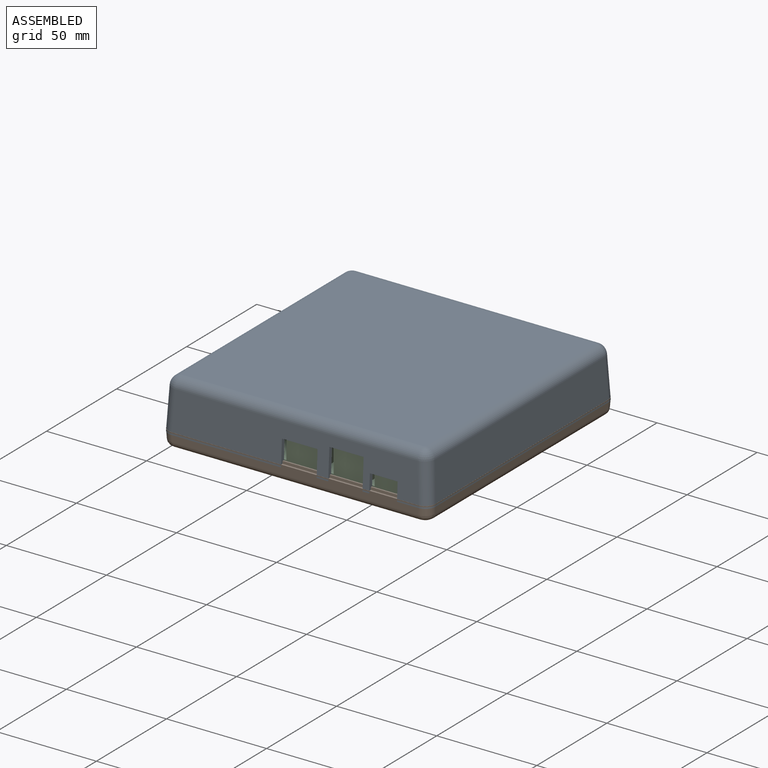
[diagram: assembled view]
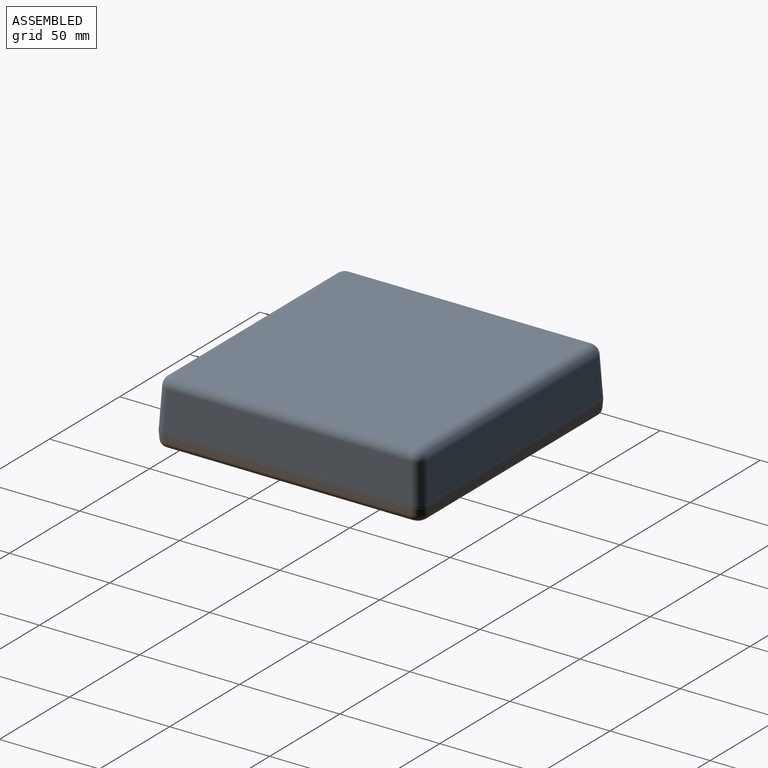
[diagram: assembled view, second angle]
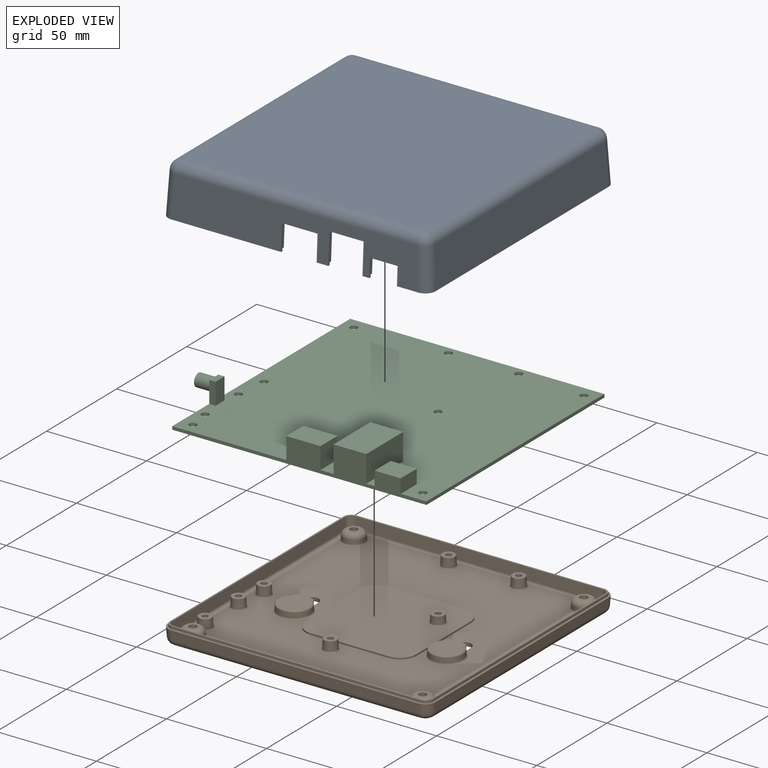
[diagram: exploded view]
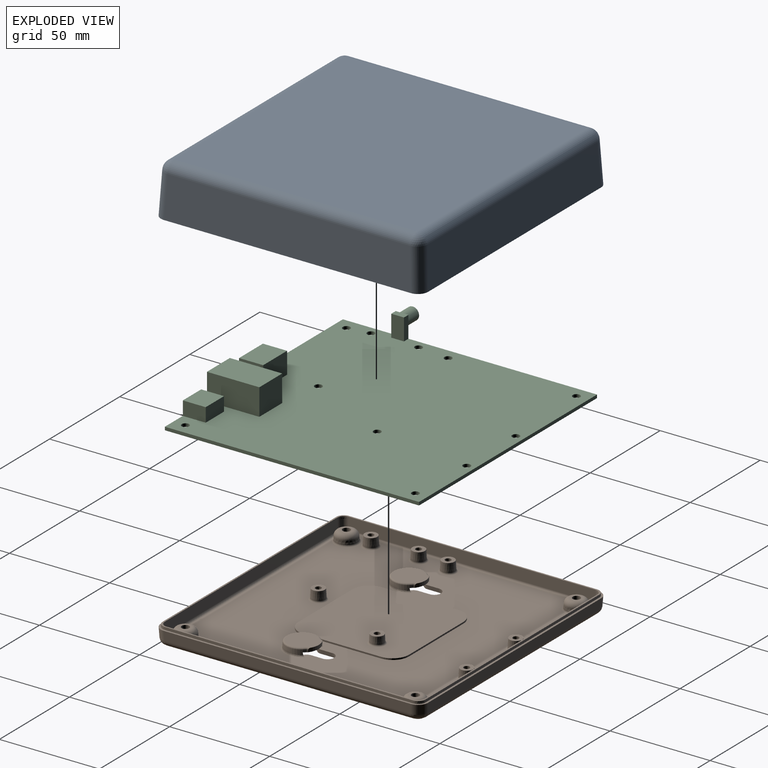
[diagram: exploded view, second angle]
ASSEMBLY  parts=3 mates=2
PART A: 152 faces, bbox 134x134x25.9 mm
  f0: plane 133.76x133.76mm, normal (0,0,-1), area 375.5mm2, adj f1,f3,f11,f50,f51,f52,f54,f56
  f1: plane 123.89x21.08mm, normal (-1,0,0.05), area 2376.1mm2, adj f0,f49,f54,f55,f64,f143,f144,f145
  f2: plane 131.77x131.77mm, normal (0,0,-1), area 372.5mm2, adj f3,f4,f11,f68,f69,f70,f71,f72
  f3: plane 89.72x1.27mm, normal (1,0,0.05), area 114mm2, adj f0,f2,f72,f143
  f4: plane 123.74x19.71mm, normal (1,0,-0.05), area 2162.6mm2, adj f2,f12,f13,f14,f15,f16,f17,f36
  f5: plane 5.82x1.02mm, normal (0,0,-1), area 5.9mm2, adj f9,f51,f137,f141
  f6: plane 3.38x1.02mm, normal (0,0,-1), area 3.4mm2, adj f10,f51,f134,f138
  f7: plane 5.82x1.02mm, normal (0,0,-1), area 5.9mm2, adj f9,f83,f137,f141
  f8: plane 3.38x1.02mm, normal (0,0,-1), area 3.5mm2, adj f10,f83,f134,f138
  f9: plane 5.82x1.27mm, normal (0,1,0.05), area 7.4mm2, adj f5,f7,f137,f141
  f10: plane 3.38x1.27mm, normal (0,1,0.05), area 4.3mm2, adj f6,f8,f134,f138
  f11: plane 10.64x1.27mm, normal (0,1,0.05), area 13.5mm2, adj f0,f2,f68,f135
  f12: bspline ~3.93x3.25mm, area 12.8mm2, adj f4,f13,f86,f132
  f13: bspline ~3.93x3.25mm, area 12.8mm2, adj f4,f12,f14,f86
  f14: bspline ~9.24x6.95mm, area 17.5mm2, adj f4,f13,f86,f133
  f15: bspline ~3.93x3.25mm, area 12.8mm2, adj f4,f16,f88,f124
  f16: bspline ~3.93x3.25mm, area 12.8mm2, adj f4,f15,f17,f88
  f17: bspline ~9.24x6.95mm, area 17.5mm2, adj f4,f16,f88,f125
  f18: bspline ~3.93x3.25mm, area 12.8mm2, adj f19,f85,f90,f116
  f19: bspline ~3.93x3.25mm, area 12.8mm2, adj f18,f20,f85,f90
  f20: bspline ~9.24x6.95mm, area 17.5mm2, adj f19,f85,f90,f117
  f21: bspline ~3.93x3.25mm, area 12.8mm2, adj f22,f81,f92,f108
  f22: bspline ~3.93x3.25mm, area 12.8mm2, adj f21,f23,f81,f92
  f23: bspline ~9.24x6.95mm, area 17.5mm2, adj f22,f81,f92,f109
  f24: bspline ~3.93x3.25mm, area 12.8mm2, adj f25,f83,f86,f127
  f25: bspline ~3.93x3.25mm, area 12.8mm2, adj f24,f26,f83,f86
  f26: bspline ~9.24x6.95mm, area 17.5mm2, adj f25,f83,f86,f126
  f27: bspline ~3.93x3.25mm, area 12.8mm2, adj f28,f85,f88,f119
  f28: bspline ~3.93x3.25mm, area 12.8mm2, adj f27,f29,f85,f88
  f29: bspline ~9.24x6.95mm, area 17.5mm2, adj f28,f85,f88,f118
  f30: bspline ~3.93x3.25mm, area 12.8mm2, adj f31,f81,f90,f111
  f31: bspline ~3.93x3.25mm, area 12.8mm2, adj f30,f32,f81,f90
  f32: bspline ~9.24x6.95mm, area 17.5mm2, adj f31,f81,f90,f110
  f33: bspline ~3.93x3.25mm, area 12.8mm2, adj f34,f83,f92,f103
  f34: bspline ~3.93x3.25mm, area 12.8mm2, adj f33,f35,f83,f92
  f35: bspline ~9.24x6.95mm, area 17.5mm2, adj f34,f83,f92,f102
  f36: cylinder r=3.17mm len=109.14mm, axis (0,-1,0), area 517.6mm2, adj f4,f48,f125,f130
  f37: cylinder r=3.17mm len=1.16mm, axis (0,-1,0), area 0.2mm2, adj f4,f76,f133
  f38: cylinder r=3.17mm len=1.16mm, axis (1,0,0), area 0.2mm2, adj f75,f85,f118
  f39: cylinder r=3.17mm len=109.14mm, axis (1,0,0), area 517.6mm2, adj f48,f85,f117,f121
  f40: cylinder r=3.17mm len=1.16mm, axis (1,0,0), area 0.2mm2, adj f77,f83,f102
  f41: cylinder r=3.17mm len=109.14mm, axis (1,0,0), area 517.6mm2, adj f48,f83,f105,f126
  f42: cylinder r=3.17mm len=1.16mm, axis (0,-1,0), area 0.2mm2, adj f78,f81,f110
  f43: cylinder r=3.17mm len=109.14mm, axis (0,-1,0), area 517.6mm2, adj f48,f81,f109,f113
  f44: cylinder r=3.17mm len=1.16mm, axis (0,-1,0), area 0.2mm2, adj f77,f81,f106
  f45: cylinder r=3.17mm len=1.16mm, axis (1,0,0), area 0.2mm2, adj f76,f83,f129
  f46: cylinder r=3.17mm len=1.16mm, axis (1,0,0), area 0.2mm2, adj f78,f85,f114
  f47: cylinder r=3.17mm len=1.16mm, axis (0,-1,0), area 0.2mm2, adj f4,f75,f122
  f48: plane 121.24x121.24mm, normal (0,0,-1), area 14423.5mm2, adj f36,f39,f41,f43,f107,f115,f123,f128
  f49: plane 60.13x27.08mm, normal (0,0,-1), area 85.4mm2, adj f1,f51,f55,f67,f73,f74,f140,f145
  f50: plane 123.39x20.59mm, normal (0,1,0.05), area 2521.4mm2, adj f0,f54,f57,f63
  f51: plane 123.4x20.59mm, normal (0,-1,0.05), area 1908.2mm2, adj f0,f5,f6,f49,f55,f56,f60,f134
  f52: plane 123.39x20.59mm, normal (1,0,0.05), area 2521.4mm2, adj f0,f56,f57,f59
  f53: plane 121.24x121.24mm, normal (0,0,1), area 14697.9mm2, adj f59,f60,f63,f64
  f54: cylinder r=5.08mm len=20.7mm, axis (-0.05,0.05,-1), area 164.4mm2, adj f0,f1,f50,f65
  f55: cylinder r=5.08mm len=20.7mm, axis (-0.05,-0.05,-1), area 164.4mm2, adj f1,f49,f51,f62
  f56: cylinder r=5.08mm len=20.7mm, axis (0.05,-0.05,-1), area 164.4mm2, adj f0,f51,f52,f58
  f57: cylinder r=5.08mm len=20.7mm, axis (0.05,0.05,-1), area 164.4mm2, adj f0,f50,f52,f61
  f58: sphere r=5.08mm, area 38.4mm2, adj f56,f59,f60
  f59: cylinder r=5.08mm len=121.24mm, axis (0,-1,0), area 935.2mm2, adj f52,f53,f58,f61
  f60: cylinder r=5.08mm len=121.24mm, axis (1,0,0), area 935.2mm2, adj f51,f53,f58,f62
  f61: sphere r=5.08mm, area 38.4mm2, adj f57,f59,f63
  f62: sphere r=5.08mm, area 38.4mm2, adj f55,f60,f64
  f63: cylinder r=5.08mm len=121.24mm, axis (1,0,0), area 935.2mm2, adj f50,f53,f61,f65
  f64: cylinder r=5.08mm len=121.24mm, axis (0,-1,0), area 935.2mm2, adj f1,f53,f62,f65
  f65: sphere r=5.08mm, area 38.4mm2, adj f54,f63,f64
  f66: plane 59.09x26.15mm, normal (0,0,-1), area 84.3mm2, adj f4,f67,f73,f74,f82,f83,f140,f145
  f67: plane 54.83x1.27mm, normal (0,1,0.05), area 69.7mm2, adj f49,f66,f74,f140
  f68: cone r=4.06mm half-angle=3deg, axis (0,0,1), area 8.2mm2, adj f0,f2,f11,f69
  f69: plane 123.38x1.27mm, normal (-1,0,0.05), area 156.9mm2, adj f0,f2,f68,f70
  f70: cone r=4.06mm half-angle=3deg, axis (0,0,1), area 8.2mm2, adj f0,f2,f69,f71
  f71: plane 123.38x1.27mm, normal (0,-1,0.05), area 156.9mm2, adj f0,f2,f70,f72
  f72: cone r=4.06mm half-angle=3deg, axis (0,0,1), area 8.2mm2, adj f0,f2,f3,f71
  f73: plane 21.89x1.27mm, normal (1,0,0.05), area 27.8mm2, adj f49,f66,f74,f145
  f74: cone r=4.06mm half-angle=3deg, axis (0,0,1), area 8.2mm2, adj f49,f66,f67,f73
  f75: sphere r=3.17mm, area 9mm2, adj f38,f47,f84,f120
  f76: sphere r=3.17mm, area 9mm2, adj f37,f45,f82,f131
  f77: sphere r=3.17mm, area 9mm2, adj f40,f44,f79,f104
  f78: sphere r=3.17mm, area 9mm2, adj f42,f46,f80,f112
  f79: cylinder r=3.17mm len=19.28mm, axis (0.05,-0.05,-1), area 95.9mm2, adj f2,f77,f81,f83
  f80: cylinder r=3.17mm len=19.28mm, axis (0.05,0.05,-1), area 95.9mm2, adj f2,f78,f81,f85
  f81: plane 123.3x19.27mm, normal (-1,0,-0.05), area 2293mm2, adj f2,f21,f22,f23,f30,f31,f32,f42
  f82: cylinder r=3.17mm len=19.28mm, axis (-0.05,-0.05,-1), area 95.9mm2, adj f4,f66,f76,f83
  f83: plane 123.3x19.27mm, normal (0,1,-0.05), area 1741.7mm2, adj f2,f7,f8,f24,f25,f26,f33,f34
  f84: cylinder r=3.17mm len=19.28mm, axis (-0.05,0.05,-1), area 95.9mm2, adj f2,f4,f75,f85
  f85: plane 123.3x19.27mm, normal (0,-1,-0.05), area 2292.8mm2, adj f2,f18,f19,f20,f27,f28,f29,f38
  f86: cone r=4.13mm half-angle=3deg, axis (0,0,1), area 380.3mm2, adj f12,f13,f14,f24,f25,f26,f87,f126
  f87: plane 6.03x6.03mm, normal (0,0,-1), area 20.6mm2, adj f86,f100
  f88: cone r=4.13mm half-angle=3deg, axis (0,0,1), area 380.3mm2, adj f15,f16,f17,f27,f28,f29,f89,f118
  f89: plane 6.03x6.03mm, normal (0,0,-1), area 20.6mm2, adj f88,f98
  f90: cone r=4.13mm half-angle=3deg, axis (0,0,1), area 380.3mm2, adj f18,f19,f20,f30,f31,f32,f91,f110
  f91: plane 6.03x6.03mm, normal (0,0,-1), area 20.6mm2, adj f90,f96
  f92: cone r=4.13mm half-angle=3deg, axis (0,0,1), area 380.3mm2, adj f21,f22,f23,f33,f34,f35,f93,f102
  f93: plane 6.03x6.03mm, normal (0,0,-1), area 20.6mm2, adj f92,f94
  f94: cone r=1.59mm half-angle=3deg, axis (0,0,1), area 153.4mm2, adj f93,f95
  f95: plane 4.51x4.51mm, normal (0,0,-1), area 15.9mm2, adj f94
  f96: cone r=1.59mm half-angle=3deg, axis (0,0,1), area 153.4mm2, adj f91,f97
  f97: plane 4.51x4.51mm, normal (0,0,-1), area 15.9mm2, adj f96
  f98: cone r=1.59mm half-angle=3deg, axis (0,0,1), area 153.4mm2, adj f89,f99
  f99: plane 4.51x4.51mm, normal (0,0,-1), area 15.9mm2, adj f98
  f100: cone r=1.59mm half-angle=3deg, axis (0,0,1), area 153.4mm2, adj f87,f101
  f101: plane 4.51x4.51mm, normal (0,0,-1), area 15.9mm2, adj f100
  f102: bspline ~6.07x3.61mm, area 5.1mm2, adj f35,f40,f92,f104
  f103: bspline ~10.75x9.46mm, area 17.5mm2, adj f33,f83,f92,f105
  f104: bspline ~6.84x6.46mm, area 15.3mm2, adj f77,f92,f102,f106
  f105: bspline ~7.62x4.46mm, area 14.4mm2, adj f41,f92,f103,f107
  f106: bspline ~6.06x3.58mm, area 5.1mm2, adj f44,f92,f104,f108
  f107: torus R=5.63mm, axis (0,0,1), area 30.9mm2, adj f48,f92,f105,f109
  f108: bspline ~10.75x9.46mm, area 17.5mm2, adj f21,f81,f92,f106
  f109: bspline ~7.65x4.37mm, area 14.4mm2, adj f23,f43,f92,f107
  f110: bspline ~6.07x3.61mm, area 5.1mm2, adj f32,f42,f90,f112
  f111: bspline ~10.75x9.46mm, area 17.5mm2, adj f30,f81,f90,f113
  f112: bspline ~6.36x6.36mm, area 15.3mm2, adj f78,f90,f110,f114
  f113: bspline ~7.62x4.46mm, area 14.4mm2, adj f43,f90,f111,f115
  f114: bspline ~6.06x3.58mm, area 5.1mm2, adj f46,f90,f112,f116
  f115: torus R=5.63mm, axis (0,0,1), area 30.9mm2, adj f48,f90,f113,f117
  f116: bspline ~10.75x9.46mm, area 17.5mm2, adj f18,f85,f90,f114
  f117: bspline ~7.65x4.37mm, area 14.4mm2, adj f20,f39,f90,f115
  f118: bspline ~6.07x3.61mm, area 5.1mm2, adj f29,f38,f88,f120
  f119: bspline ~10.75x9.46mm, area 17.5mm2, adj f27,f85,f88,f121
  f120: bspline ~6.84x6.46mm, area 15.3mm2, adj f75,f88,f118,f122
  f121: bspline ~7.62x4.46mm, area 14.4mm2, adj f39,f88,f119,f123
  f122: bspline ~6.06x3.58mm, area 5.1mm2, adj f47,f88,f120,f124
  f123: torus R=5.63mm, axis (0,0,1), area 30.9mm2, adj f48,f88,f121,f125
  f124: bspline ~10.75x9.46mm, area 17.5mm2, adj f4,f15,f88,f122
  f125: bspline ~7.65x4.37mm, area 14.4mm2, adj f17,f36,f88,f123
  f126: bspline ~7.65x4.37mm, area 14.4mm2, adj f26,f41,f86,f128
  f127: bspline ~10.75x9.46mm, area 17.5mm2, adj f24,f83,f86,f129
  f128: torus R=5.63mm, axis (0,0,1), area 30.9mm2, adj f48,f86,f126,f130
  f129: bspline ~6.06x3.58mm, area 5.1mm2, adj f45,f86,f127,f131
  f130: bspline ~7.62x4.46mm, area 14.4mm2, adj f36,f86,f128,f132
  f131: bspline ~6.84x6.46mm, area 15.3mm2, adj f76,f86,f129,f133
  f132: bspline ~10.75x9.46mm, area 17.5mm2, adj f4,f12,f86,f130
  f133: bspline ~6.07x3.61mm, area 5.1mm2, adj f14,f37,f86,f131
  f134: plane 8.7x2.36mm, normal (1,0,0), area 15.4mm2, adj f6,f8,f10,f51,f83,f147
  f135: plane 8.7x2.36mm, normal (-1,0,0), area 15.4mm2, adj f0,f2,f11,f51,f83,f146
  f136: plane 13.34x1.91mm, normal (0,0,-1), area 25.4mm2, adj f51,f83,f146,f147
  f137: plane 15.05x2.7mm, normal (1,0,0), area 27.5mm2, adj f5,f7,f9,f51,f83,f149
  f138: plane 15.05x2.7mm, normal (-1,0,0), area 27.5mm2, adj f6,f8,f10,f51,f83,f148
  f139: plane 16.59x1.91mm, normal (0,0,-1), area 31.6mm2, adj f51,f83,f148,f149
  f140: plane 12.51x2.56mm, normal (1,0,0), area 22.6mm2, adj f49,f51,f66,f67,f83,f151
  f141: plane 12.51x2.56mm, normal (-1,0,0), area 22.6mm2, adj f5,f7,f9,f51,f83,f150
  f142: plane 17.27x1.91mm, normal (0,0,-1), area 32.9mm2, adj f51,f83,f150,f151
  f143: plane 9.66x2.41mm, normal (0,-1,-0.09), area 17.3mm2, adj f0,f1,f2,f3,f4,f144
  f144: cylinder r=5.17mm len=10.31mm, axis (1,0,0), area 29.3mm2, adj f1,f4,f143,f145
  f145: plane 9.66x2.41mm, normal (0,1,-0.09), area 17.3mm2, adj f1,f4,f49,f66,f73,f144
  f146: cylinder r=0.25mm len=1.92mm, axis (0,1,0), area 0.8mm2, adj f51,f83,f135,f136
  f147: cylinder r=0.25mm len=1.92mm, axis (0,-1,0), area 0.8mm2, adj f51,f83,f134,f136
  f148: cylinder r=0.25mm len=1.92mm, axis (0,1,0), area 0.8mm2, adj f51,f83,f138,f139
  f149: cylinder r=0.25mm len=1.92mm, axis (0,-1,0), area 0.8mm2, adj f51,f83,f137,f139
  f150: cylinder r=0.25mm len=1.92mm, axis (0,1,0), area 0.8mm2, adj f51,f83,f141,f142
  f151: cylinder r=0.25mm len=1.92mm, axis (0,-1,0), area 0.8mm2, adj f51,f83,f140,f142
PART B: 195 faces, bbox 133.7x133.7x9.1 mm
  f0: plane 126.7x126.7mm, normal (0,0,1), area 11700.7mm2, adj f8,f9,f10,f11,f12,f13,f14,f15
  f1: plane 4.15x4.15mm, normal (0,0,1), area 4.9mm2, adj f90,f92,f94,f183
  f2: plane 4.15x4.15mm, normal (0,0,1), area 4.9mm2, adj f87,f88,f90,f178
  f3: plane 4.15x4.15mm, normal (0,0,1), area 4.9mm2, adj f91,f93,f94,f186
  f4: plane 14.41x12.9mm, normal (0,0,-1), area 153.2mm2, adj f12,f20,f21,f22,f156,f157,f158,f159
  f5: plane 14.41x12.9mm, normal (0,0,-1), area 153.2mm2, adj f18,f23,f24,f25,f152,f153,f154,f155
  f6: plane 15.59x14.47mm, normal (0,0,1), area 175mm2, adj f161,f162,f163,f164
  f7: plane 15.59x14.47mm, normal (0,0,1), area 175mm2, adj f160,f165,f166,f167
  f8: plane 5.84x1.91mm, normal (1,0,-0.05), area 11.1mm2, adj f0,f9,f13,f27
  f9: cone r=3.43mm half-angle=3deg, axis (0,0,-1), area 20.3mm2, adj f0,f8,f10,f27
  f10: plane 5.84x1.91mm, normal (-1,0,-0.05), area 11.1mm2, adj f0,f9,f11,f27
  f11: cone r=3.17mm half-angle=3deg, axis (0,0,1), area 5mm2, adj f0,f10,f12,f27
  f12: cone r=6.35mm half-angle=3deg, axis (0,0,-1), area 94.1mm2, adj f0,f4,f11,f13,f27,f156,f157
  f13: cone r=3.17mm half-angle=3deg, axis (0,0,1), area 5mm2, adj f0,f8,f12,f27
  f14: plane 5.84x1.91mm, normal (1,0,-0.05), area 11.1mm2, adj f0,f15,f19,f27
  f15: cone r=3.43mm half-angle=3deg, axis (0,0,-1), area 20.3mm2, adj f0,f14,f16,f27
  f16: plane 5.84x1.91mm, normal (-1,0,-0.05), area 11.1mm2, adj f0,f15,f17,f27
  f17: cone r=3.17mm half-angle=3deg, axis (0,0,1), area 5mm2, adj f0,f16,f18,f27
  f18: cone r=6.35mm half-angle=3deg, axis (0,0,-1), area 94.1mm2, adj f0,f5,f17,f19,f27,f152,f153
  f19: cone r=3.17mm half-angle=3deg, axis (0,0,1), area 5mm2, adj f0,f14,f18,f27
  f20: cone r=1.27mm half-angle=3deg, axis (0,0,1), area 1mm2, adj f4,f21,f161,f164
  f21: cone r=8.25mm half-angle=3deg, axis (0,0,-1), area 87.8mm2, adj f4,f20,f22,f158,f159,f163,f189
  f22: cone r=1.27mm half-angle=3deg, axis (0,0,1), area 1mm2, adj f4,f21,f161,f162
  f23: cone r=1.27mm half-angle=3deg, axis (0,0,1), area 1mm2, adj f5,f24,f160,f167
  f24: cone r=8.25mm half-angle=3deg, axis (0,0,-1), area 87.8mm2, adj f5,f23,f25,f154,f155,f166,f190
  f25: cone r=1.27mm half-angle=3deg, axis (0,0,1), area 1mm2, adj f5,f24,f160,f165
  f26: plane 133.75x133.75mm, normal (0,0,1), area 530.3mm2, adj f28,f29,f30,f31,f41,f42,f43,f44
  f27: plane 126.7x126.7mm, normal (0,0,-1), area 12686.5mm2, adj f8,f9,f10,f11,f12,f13,f14,f15
  f28: plane 123.38x4.61mm, normal (0,1,-0.05), area 568.6mm2, adj f26,f41,f44,f48
  f29: plane 123.38x4.61mm, normal (-1,0,-0.05), area 568.6mm2, adj f26,f41,f42,f45
  f30: plane 123.38x4.61mm, normal (0,-1,-0.05), area 568.6mm2, adj f26,f42,f43,f49
  f31: plane 123.38x4.61mm, normal (1,0,-0.05), area 568.6mm2, adj f26,f43,f44,f52
  f32: plane 38.74x0.76mm, normal (-1,0,0), area 29.5mm2, adj f27,f33,f39,f40
  f33: cylinder r=6.35mm len=6.35mm, axis (0,0,-1), area 7.6mm2, adj f27,f32,f34,f40
  f34: plane 38.74x0.76mm, normal (0,1,0), area 29.5mm2, adj f27,f33,f35,f40
  f35: cylinder r=6.35mm len=6.35mm, axis (0,0,-1), area 7.6mm2, adj f27,f34,f36,f40
  f36: plane 38.74x0.76mm, normal (1,0,0), area 29.5mm2, adj f27,f35,f37,f40
  f37: cylinder r=6.35mm len=6.35mm, axis (0,0,-1), area 7.6mm2, adj f27,f36,f38,f40
  f38: plane 38.74x0.76mm, normal (0,-1,0), area 29.5mm2, adj f27,f37,f39,f40
  f39: cylinder r=6.35mm len=6.35mm, axis (0,0,-1), area 7.6mm2, adj f27,f32,f38,f40
  f40: plane 51.44x51.44mm, normal (0,0,-1), area 2610.9mm2, adj f32,f33,f34,f35,f36,f37,f38,f39
  f41: cylinder r=5.08mm len=5.31mm, axis (-0.05,0.05,1), area 36.8mm2, adj f26,f28,f29,f46
  f42: cylinder r=5.08mm len=5.31mm, axis (-0.05,-0.05,1), area 36.8mm2, adj f26,f29,f30,f47
  f43: cylinder r=5.08mm len=5.31mm, axis (0.05,-0.05,1), area 36.8mm2, adj f26,f30,f31,f51
  f44: cylinder r=5.08mm len=5.31mm, axis (0.05,0.05,1), area 36.8mm2, adj f26,f28,f31,f50
  f45: cylinder r=3.17mm len=122.9mm, axis (0,1,0), area 592.5mm2, adj f27,f29,f46,f47
  f46: bspline ~5.07x5.07mm, area 29.1mm2, adj f27,f41,f45,f48
  f47: bspline ~5.07x5.07mm, area 29.1mm2, adj f27,f42,f45,f49
  f48: cylinder r=3.17mm len=122.9mm, axis (-1,0,0), area 592.5mm2, adj f27,f28,f46,f50
  f49: cylinder r=3.17mm len=122.9mm, axis (-1,0,0), area 592.5mm2, adj f27,f30,f47,f51
  f50: bspline ~5.07x5.07mm, area 29.1mm2, adj f27,f44,f48,f52
  f51: bspline ~5.07x5.07mm, area 29.1mm2, adj f27,f43,f49,f52
  f52: cylinder r=3.17mm len=122.9mm, axis (0,1,0), area 592.5mm2, adj f27,f31,f50,f51
  f53: cone r=3.62mm half-angle=3deg, axis (0,0,-1), area 58.1mm2, adj f64,f68
  f54: plane 5.5x5.5mm, normal (0,0,-1), area 12.4mm2, adj f64,f110
  f55: cone r=3.62mm half-angle=3deg, axis (0,0,-1), area 58.1mm2, adj f63,f67
  f56: plane 5.5x5.5mm, normal (0,0,-1), area 12.4mm2, adj f63,f109
  f57: cone r=3.62mm half-angle=3deg, axis (0,0,-1), area 58.1mm2, adj f62,f66
  f58: plane 5.5x5.5mm, normal (0,0,-1), area 12.4mm2, adj f62,f108
  f59: cone r=3.62mm half-angle=3deg, axis (0,0,-1), area 58.1mm2, adj f61,f65
  f60: plane 5.5x5.5mm, normal (0,0,-1), area 12.4mm2, adj f61,f107
  f61: torus R=2.75mm, axis (0,0,-1), area 19.1mm2, adj f59,f60
  f62: torus R=2.75mm, axis (0,0,-1), area 19.1mm2, adj f57,f58
  f63: torus R=2.75mm, axis (0,0,-1), area 19.1mm2, adj f55,f56
  f64: torus R=2.75mm, axis (0,0,-1), area 19.1mm2, adj f53,f54
  f65: torus R=5.43mm, axis (0,0,1), area 77mm2, adj f27,f59
  f66: torus R=5.43mm, axis (0,0,1), area 77mm2, adj f27,f57
  f67: torus R=5.43mm, axis (0,0,1), area 77mm2, adj f27,f55
  f68: torus R=5.43mm, axis (0,0,1), area 77mm2, adj f27,f53
  f69: plane 4.15x4.15mm, normal (0,0,1), area 4.9mm2, adj f87,f89,f91,f192
  f70: plane 123.37x5.78mm, normal (0,-1,0.05), area 713.2mm2, adj f83,f86,f90,f118,f121,f123
  f71: plane 123.37x5.78mm, normal (1,0,0.05), area 713.2mm2, adj f83,f84,f87,f120,f121,f123
  f72: plane 123.37x5.78mm, normal (0,1,0.05), area 713.2mm2, adj f84,f85,f91,f119,f120,f123
  f73: plane 123.37x5.78mm, normal (-1,0,0.05), area 713.2mm2, adj f85,f86,f94,f118,f119,f123
  f74: plane 38.74x0.76mm, normal (1,0,0), area 29.5mm2, adj f0,f75,f81,f82
  f75: cylinder r=8.26mm len=8.26mm, axis (0,0,-1), area 9.9mm2, adj f0,f74,f76,f82
  f76: plane 38.74x0.76mm, normal (0,-1,0), area 29.5mm2, adj f0,f75,f77,f82
  f77: cylinder r=8.26mm len=8.26mm, axis (0,0,-1), area 9.9mm2, adj f0,f76,f78,f82
  f78: plane 38.74x0.76mm, normal (-1,0,0), area 29.5mm2, adj f0,f77,f79,f82
  f79: cylinder r=8.26mm len=8.26mm, axis (0,0,-1), area 9.9mm2, adj f0,f78,f80,f82
  f80: plane 38.74x0.76mm, normal (0,1,0), area 29.5mm2, adj f0,f79,f81,f82
  f81: cylinder r=8.26mm len=8.26mm, axis (0,0,-1), area 9.9mm2, adj f0,f74,f80,f82
  f82: plane 55.25x55.25mm, normal (0,0,1), area 2940.1mm2, adj f74,f75,f76,f77,f78,f79,f80,f81
  f83: cylinder r=3.17mm len=4.58mm, axis (-0.05,0.05,1), area 22.5mm2, adj f70,f71,f88,f121
  f84: cylinder r=3.17mm len=4.58mm, axis (-0.05,-0.05,1), area 22.5mm2, adj f71,f72,f89,f120
  f85: cylinder r=3.17mm len=4.58mm, axis (0.05,-0.05,1), area 22.5mm2, adj f72,f73,f93,f119
  f86: cylinder r=3.17mm len=4.58mm, axis (0.05,0.05,1), area 22.5mm2, adj f70,f73,f92,f118
  f87: cylinder r=1.27mm len=122.9mm, axis (0,1,0), area 234mm2, adj f0,f2,f69,f71,f88,f89,f177,f194
  f88: bspline ~3.17x3.17mm, area 8.1mm2, adj f2,f83,f87,f90
  f89: bspline ~3.17x3.17mm, area 8.1mm2, adj f69,f84,f87,f91
  f90: cylinder r=1.27mm len=122.9mm, axis (-1,0,0), area 232.6mm2, adj f0,f1,f2,f70,f88,f92,f174,f176
  f91: cylinder r=1.27mm len=122.9mm, axis (-1,0,0), area 234mm2, adj f0,f3,f69,f72,f89,f93,f188,f191
  f92: bspline ~3.17x3.17mm, area 8.1mm2, adj f1,f86,f90,f94
  f93: bspline ~3.17x3.17mm, area 8.1mm2, adj f3,f85,f91,f94
  f94: cylinder r=1.27mm len=122.9mm, axis (0,1,0), area 234mm2, adj f0,f1,f3,f73,f92,f93,f181,f185
  f95: cone r=5.52mm half-angle=3deg, axis (0,0,-1), area 65.5mm2, adj f106,f191,f192,f193,f194
  f96: plane 5.5x5.5mm, normal (0,0,1), area 12.4mm2, adj f106,f110
  f97: cone r=5.52mm half-angle=3deg, axis (0,0,-1), area 65.5mm2, adj f105,f177,f178,f179,f180
  f98: plane 5.5x5.5mm, normal (0,0,1), area 12.4mm2, adj f105,f109
  f99: cone r=5.52mm half-angle=3deg, axis (0,0,-1), area 65.5mm2, adj f104,f181,f182,f183,f184
  f100: plane 5.5x5.5mm, normal (0,0,1), area 12.4mm2, adj f104,f108
  f101: cone r=5.52mm half-angle=3deg, axis (0,0,-1), area 65.5mm2, adj f103,f185,f186,f187,f188
  f102: plane 5.5x5.5mm, normal (0,0,1), area 12.4mm2, adj f103,f107
  f103: torus R=2.75mm, axis (0,0,-1), area 105.1mm2, adj f101,f102
  f104: torus R=2.75mm, axis (0,0,-1), area 105.1mm2, adj f99,f100
  f105: torus R=2.75mm, axis (0,0,-1), area 105.1mm2, adj f97,f98
  f106: torus R=2.75mm, axis (0,0,-1), area 105.1mm2, adj f95,f96
  f107: cylinder r=1.91mm len=3.81mm, axis (0,0,-1), area 22.8mm2, adj f60,f102
  f108: cylinder r=1.91mm len=3.81mm, axis (0,0,-1), area 22.8mm2, adj f58,f100
  f109: cylinder r=1.91mm len=3.81mm, axis (0,0,-1), area 22.8mm2, adj f56,f98
  f110: cylinder r=1.91mm len=3.81mm, axis (0,0,-1), area 22.8mm2, adj f54,f96
  f111: plane 123.87x1.27mm, normal (0,-1,0.05), area 157.5mm2, adj f26,f112,f122,f123
  f112: cone r=3.81mm half-angle=3deg, axis (0,0,-1), area 7.5mm2, adj f26,f111,f113,f123
  f113: plane 123.87x1.27mm, normal (1,0,0.05), area 157.5mm2, adj f26,f112,f114,f123
  f114: cone r=3.81mm half-angle=3deg, axis (0,0,-1), area 7.5mm2, adj f26,f113,f115,f123
  f115: plane 123.87x1.27mm, normal (0,1,0.05), area 157.5mm2, adj f26,f114,f116,f123
  f116: cone r=3.81mm half-angle=3deg, axis (0,0,-1), area 7.5mm2, adj f26,f115,f117,f123
  f117: plane 123.87x1.27mm, normal (-1,0,0.05), area 157.5mm2, adj f26,f116,f122,f123
  f118: cone r=3.17mm half-angle=3deg, axis (0,0,1), area 6.4mm2, adj f70,f73,f86,f123
  f119: cone r=3.17mm half-angle=3deg, axis (0,0,1), area 6.4mm2, adj f72,f73,f85,f123
  f120: cone r=3.17mm half-angle=3deg, axis (0,0,1), area 6.4mm2, adj f71,f72,f84,f123
  f121: cone r=3.17mm half-angle=3deg, axis (0,0,1), area 6.4mm2, adj f70,f71,f83,f123
  f122: cone r=3.81mm half-angle=3deg, axis (0,0,-1), area 7.5mm2, adj f26,f111,f117,f123
  f123: plane 131.36x131.36mm, normal (0,0,1), area 391.8mm2, adj f70,f71,f72,f73,f111,f112,f113,f114
  f124: cone r=3.17mm half-angle=3deg, axis (0,0,-1), area 90.2mm2, adj f125,f175,f176
  f125: plane 6.35x6.35mm, normal (0,0,1), area 24.9mm2, adj f124,f151
  f126: cone r=3.17mm half-angle=3deg, axis (0,0,-1), area 90.2mm2, adj f127,f173,f174
  f127: plane 6.35x6.35mm, normal (0,0,1), area 24.9mm2, adj f126,f149
  f128: cone r=3.17mm half-angle=3deg, axis (0,0,-1), area 90.2mm2, adj f129,f172
  f129: plane 6.35x6.35mm, normal (0,0,1), area 24.9mm2, adj f128,f147
  f130: cone r=3.17mm half-angle=3deg, axis (0,0,-1), area 90.2mm2, adj f131,f171
  f131: plane 6.35x6.35mm, normal (0,0,1), area 24.9mm2, adj f130,f145
  f132: cone r=3.17mm half-angle=3deg, axis (0,0,-1), area 90.2mm2, adj f133,f170
  f133: plane 6.35x6.35mm, normal (0,0,1), area 24.9mm2, adj f132,f143
  f134: plane 6.35x6.35mm, normal (0,0,1), area 24.9mm2, adj f135,f141
  f135: cone r=3.17mm half-angle=3deg, axis (0,0,-1), area 74mm2, adj f134,f169
  f136: cone r=3.17mm half-angle=3deg, axis (0,0,-1), area 90.2mm2, adj f137,f168
  f137: plane 6.35x6.35mm, normal (0,0,1), area 24.9mm2, adj f136,f139
  f138: plane 3.48x3.48mm, normal (0,0,1), area 9.5mm2, adj f139
  f139: cone r=1.47mm half-angle=3deg, axis (0,0,-1), area 51.3mm2, adj f137,f138
  f140: plane 3.48x3.48mm, normal (0,0,1), area 9.5mm2, adj f141
  f141: cone r=1.47mm half-angle=3deg, axis (0,0,-1), area 51.3mm2, adj f134,f140
  f142: plane 3.48x3.48mm, normal (0,0,1), area 9.5mm2, adj f143
  f143: cone r=1.47mm half-angle=3deg, axis (0,0,-1), area 51.3mm2, adj f133,f142
  f144: plane 3.48x3.48mm, normal (0,0,1), area 9.5mm2, adj f145
  f145: cone r=1.47mm half-angle=3deg, axis (0,0,-1), area 51.3mm2, adj f131,f144
  f146: plane 3.48x3.48mm, normal (0,0,1), area 9.5mm2, adj f147
  f147: cone r=1.47mm half-angle=3deg, axis (0,0,-1), area 51.3mm2, adj f129,f146
  f148: plane 3.48x3.48mm, normal (0,0,1), area 9.5mm2, adj f149
  f149: cone r=1.47mm half-angle=3deg, axis (0,0,-1), area 51.3mm2, adj f127,f148
  f150: plane 3.48x3.48mm, normal (0,0,1), area 9.5mm2, adj f151
  f151: cone r=1.47mm half-angle=3deg, axis (0,0,-1), area 51.3mm2, adj f125,f150
  f152: plane 1.91x0.3mm, normal (0,1,0.05), area 0.4mm2, adj f0,f5,f18,f155
  f153: plane 1.91x0.3mm, normal (0,1,0.05), area 0.4mm2, adj f0,f5,f18,f154
  f154: plane 6.51x2.1mm, normal (-1,0,0.05), area 9.8mm2, adj f0,f5,f24,f153,f190
  f155: plane 6.51x2.1mm, normal (1,0,0.05), area 9.8mm2, adj f0,f5,f24,f152,f190
  f156: plane 1.91x0.3mm, normal (0,1,0.05), area 0.4mm2, adj f0,f4,f12,f159
  f157: plane 1.91x0.3mm, normal (0,1,0.05), area 0.4mm2, adj f0,f4,f12,f158
  f158: plane 6.51x2.1mm, normal (-1,0,0.05), area 9.8mm2, adj f0,f4,f21,f157,f189
  f159: plane 6.51x2.1mm, normal (1,0,0.05), area 9.8mm2, adj f0,f4,f21,f156,f189
  f160: cone r=8.16mm half-angle=3deg, axis (0,0,1), area 20.5mm2, adj f5,f7,f23,f25,f165,f167
  f161: cone r=8.16mm half-angle=3deg, axis (0,0,1), area 20.5mm2, adj f4,f6,f20,f22,f162,f164
  f162: torus R=2.29mm, axis (0,0,-1), area 1.6mm2, adj f6,f22,f161,f163
  f163: torus R=7.23mm, axis (0,0,-1), area 42.4mm2, adj f6,f21,f162,f164
  f164: torus R=2.29mm, axis (0,0,-1), area 1.6mm2, adj f6,f20,f161,f163
  f165: torus R=2.29mm, axis (0,0,-1), area 1.6mm2, adj f7,f25,f160,f166
  f166: torus R=7.23mm, axis (0,0,-1), area 42.4mm2, adj f7,f24,f165,f167
  f167: torus R=2.29mm, axis (0,0,-1), area 1.6mm2, adj f7,f23,f160,f166
  f168: torus R=4.16mm, axis (0,0,1), area 26.8mm2, adj f0,f136
  f169: torus R=4.12mm, axis (0,0,-1), area 26.5mm2, adj f82,f135
  f170: torus R=4.16mm, axis (0,0,1), area 26.8mm2, adj f0,f132
  f171: torus R=4.16mm, axis (0,0,1), area 26.8mm2, adj f0,f130
  f172: torus R=4.16mm, axis (0,0,1), area 26.8mm2, adj f0,f128
  f173: torus R=4.16mm, axis (0,0,1), area 24.4mm2, adj f0,f126,f174
  f174: bspline ~3.14x1.26mm, area 2.8mm2, adj f90,f126,f173
  f175: torus R=4.16mm, axis (0,0,1), area 24.4mm2, adj f0,f124,f176
  f176: bspline ~3.14x1.26mm, area 2.8mm2, adj f90,f124,f175
  f177: bspline ~3.93x1.42mm, area 4.7mm2, adj f87,f97,f178,f179
  f178: torus R=6.15mm, axis (0,0,1), area 6.5mm2, adj f2,f97,f177,f180
  f179: torus R=6.15mm, axis (0,0,1), area 27.2mm2, adj f0,f97,f177,f180
  f180: bspline ~3.93x1.42mm, area 4.7mm2, adj f90,f97,f178,f179
  f181: bspline ~3.93x1.42mm, area 4.7mm2, adj f94,f99,f182,f183
  f182: torus R=6.15mm, axis (0,0,1), area 27.2mm2, adj f0,f99,f181,f184
  f183: torus R=6.15mm, axis (0,0,1), area 6.5mm2, adj f1,f99,f181,f184
  f184: bspline ~3.93x1.42mm, area 4.7mm2, adj f90,f99,f182,f183
  f185: bspline ~3.93x1.42mm, area 4.7mm2, adj f94,f101,f186,f187
  f186: torus R=6.15mm, axis (0,0,1), area 6.5mm2, adj f3,f101,f185,f188
  f187: torus R=6.15mm, axis (0,0,1), area 27.2mm2, adj f0,f101,f185,f188
  f188: bspline ~3.93x1.42mm, area 4.7mm2, adj f91,f101,f186,f187
  f189: torus R=8.88mm, axis (0,0,1), area 44.6mm2, adj f0,f21,f158,f159
  f190: torus R=8.88mm, axis (0,0,1), area 44.6mm2, adj f0,f24,f154,f155
  f191: bspline ~3.93x1.42mm, area 4.7mm2, adj f91,f95,f192,f193
  f192: torus R=6.15mm, axis (0,0,1), area 6.5mm2, adj f69,f95,f191,f194
  f193: torus R=6.15mm, axis (0,0,1), area 27.2mm2, adj f0,f95,f191,f194
  f194: bspline ~3.93x1.42mm, area 4.7mm2, adj f87,f95,f192,f193
PART C: 37 faces, bbox 134.6x127x14.9 mm
  f0: plane 3.18x3.18mm, normal (-1,0,0), area 2.2mm2, adj f32,f33,f35
  f1: plane 3.18x3.18mm, normal (-1,0,0), area 2.2mm2, adj f31,f33,f35
  f2: plane 127x127mm, normal (0,0,1), area 15208.4mm2, adj f3,f4,f5,f6,f7,f8,f9,f10
  f3: plane 127x1.59mm, normal (0,1,0), area 201.6mm2, adj f2,f4,f17,f18
  f4: plane 127x9.21mm, normal (-1,0,0), area 234.2mm2, adj f2,f3,f5,f18,f31,f32,f35
  f5: plane 127x14.92mm, normal (0,-1,0), area 694.5mm2, adj f2,f4,f17,f18,f20,f21,f22,f24
  f6: cylinder r=1.85mm len=3.7mm, axis (0,0,-1), area 18.5mm2, adj f2,f18
  f7: cylinder r=1.85mm len=3.7mm, axis (0,0,-1), area 18.5mm2, adj f2,f18
  f8: cylinder r=1.85mm len=3.7mm, axis (0,0,-1), area 18.5mm2, adj f2,f18
  f9: cylinder r=1.85mm len=3.7mm, axis (0,0,-1), area 18.5mm2, adj f2,f18
  f10: cylinder r=1.85mm len=3.7mm, axis (0,0,-1), area 18.5mm2, adj f2,f18
  f11: cylinder r=1.85mm len=3.7mm, axis (0,0,-1), area 18.5mm2, adj f2,f18
  f12: cylinder r=1.85mm len=3.7mm, axis (0,0,-1), area 18.5mm2, adj f2,f18
  f13: cylinder r=1.85mm len=3.7mm, axis (0,0,-1), area 18.5mm2, adj f2,f18
  f14: cylinder r=1.85mm len=3.7mm, axis (0,0,-1), area 18.5mm2, adj f2,f18
  f15: cylinder r=1.85mm len=3.7mm, axis (0,0,-1), area 18.5mm2, adj f2,f18
  f16: cylinder r=1.85mm len=3.7mm, axis (0,0,-1), area 18.5mm2, adj f2,f18
  f17: plane 127x1.59mm, normal (1,0,0), area 201.6mm2, adj f2,f3,f5,f18
  f18: plane 127x127mm, normal (0,0,-1), area 16010.7mm2, adj f3,f4,f5,f6,f7,f8,f9,f10
  f19: plane 17.02x10.8mm, normal (0,1,0), area 183.7mm2, adj f2,f20,f21,f22
  f20: plane 12.07x10.8mm, normal (-1,0,0), area 130.2mm2, adj f2,f5,f19,f22
  f21: plane 12.07x10.8mm, normal (1,0,0), area 130.2mm2, adj f2,f5,f19,f22
  f22: plane 17.02x12.07mm, normal (0,0,1), area 205.3mm2, adj f5,f19,f20,f21
  f23: plane 16.33x13.34mm, normal (0,1,0), area 217.8mm2, adj f2,f24,f25,f26
  f24: plane 26.16x13.34mm, normal (-1,0,0), area 348.9mm2, adj f2,f5,f23,f26
  f25: plane 26.16x13.34mm, normal (1,0,0), area 348.9mm2, adj f2,f5,f23,f26
  f26: plane 26.16x16.33mm, normal (0,0,1), area 427.3mm2, adj f5,f23,f24,f25
  f27: plane 13.08x6.99mm, normal (0,1,0), area 91.4mm2, adj f2,f28,f29,f30
  f28: plane 11.43x6.99mm, normal (-1,0,0), area 79.8mm2, adj f2,f5,f27,f30
  f29: plane 11.43x6.99mm, normal (1,0,0), area 79.8mm2, adj f2,f5,f27,f30
  f30: plane 13.08x11.43mm, normal (0,0,1), area 149.5mm2, adj f5,f27,f28,f29
  f31: plane 10.8x3.18mm, normal (0,1,0), area 34.3mm2, adj f1,f2,f4,f33,f34
  f32: plane 10.8x3.18mm, normal (0,-1,0), area 34.3mm2, adj f0,f2,f4,f33,f34
  f33: plane 6.35x3.18mm, normal (0,0,1), area 20.2mm2, adj f0,f1,f31,f32,f34
  f34: plane 10.8x6.35mm, normal (1,0,0), area 68.5mm2, adj f2,f31,f32,f33
  f35: cylinder r=3.17mm len=7.62mm, axis (1,0,0), area 152mm2, adj f0,f1,f4,f36
  f36: plane 6.35x6.35mm, normal (-1,0,0), area 31.7mm2, adj f35
PLACE A t=(-22.88,19.58,-59.43)mm
PLACE B t=(-22.88,19.58,-58.16)mm
PLACE C t=(-22.88,19.58,-58.8)mm
MATE revolute A.f86 <-> C.f7  axis (0,0,-1) through (-80.33,-37.87,-57.21)mm
MATE revolute B.f53 <-> C.f7  axis (0,0,1) through (-80.33,-37.87,-58.8)mm
